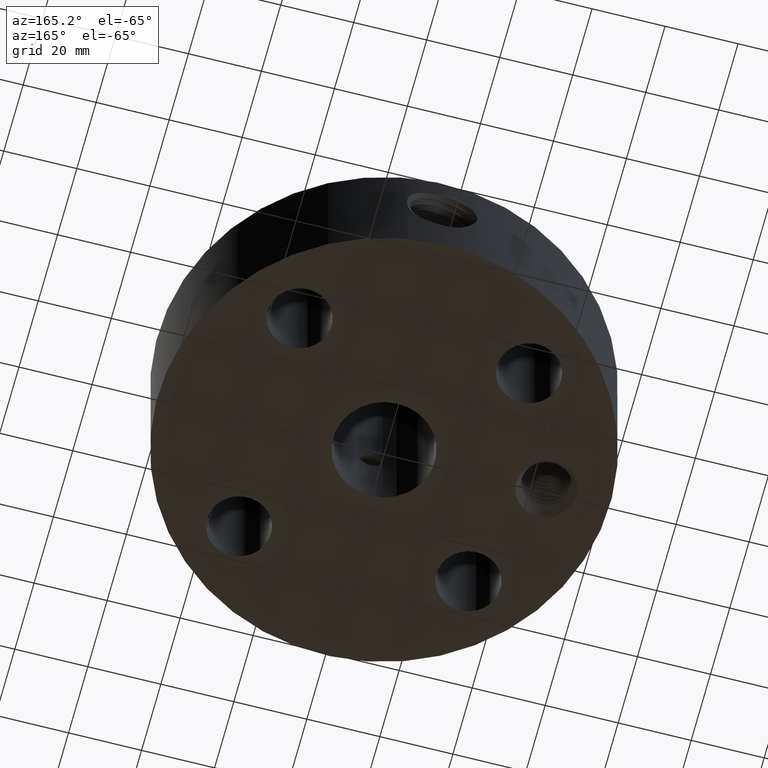
[diagram: clean part render]
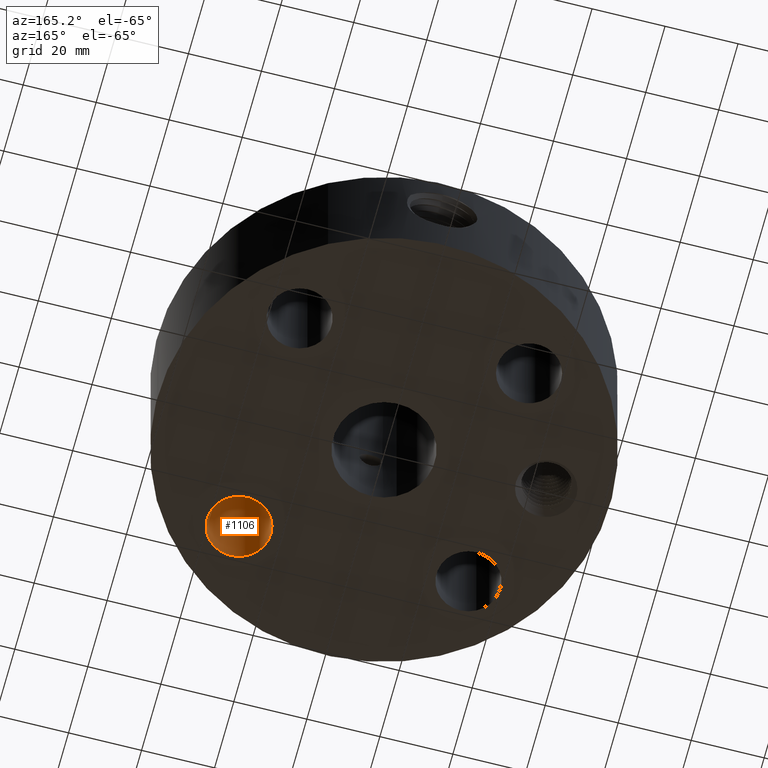
[diagram: same view with one face highlighted and labeled with its STEP entity id]
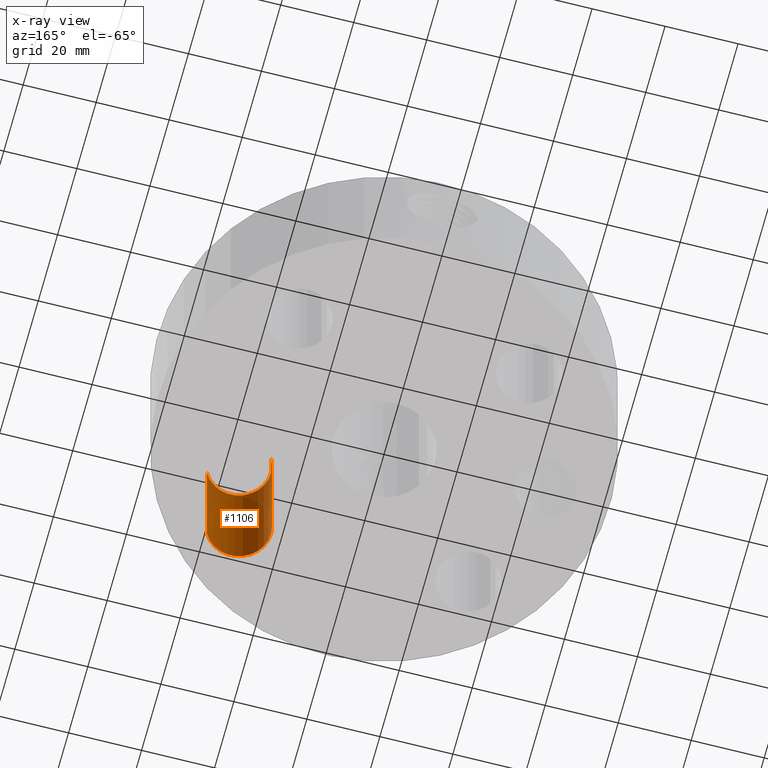
[diagram: x-ray of the same camera — body ghosted, the highlighted face saturated]
A machine part, auxiliary view. The second image highlights one B-rep face of the part: STEP entity #1106.
The next image is the same camera in x-ray: the body ghosted, the highlighted face saturated — about 20% of this face is hidden behind the body in this view.
In plain terms, the highlighted cylindrical surface (edge-blend (fillet) strip) has radius 8.763 mm, axis along (0, -0, -1).
Its self-contained STEP definition (entity closure, byte-faithful):
#227=AXIS2_PLACEMENT_3D('Circle Axis2P3D',#225,#226,$) ;
#484=AXIS2_PLACEMENT_3D('Circle Axis2P3D',#482,#483,$) ;
#1088=AXIS2_PLACEMENT_3D('Cylinder Axis2P3D',#1085,#1086,#1087) ;
#225=CARTESIAN_POINT('Axis2P3D Location',(1.23743686708,-1.23743686708,0.0600000000002)) ;
#229=CARTESIAN_POINT('Vertex',(1.54020285093,-1.4028386779,0.0600000000002)) ;
#231=CARTESIAN_POINT('Vertex',(0.934670883228,-1.07203505626,0.0600000000002)) ;
#477=CARTESIAN_POINT('Vertex',(0.934670883228,-1.07203505626,1.56000000001)) ;
#479=CARTESIAN_POINT('Vertex',(1.54020285093,-1.4028386779,1.56000000001)) ;
#482=CARTESIAN_POINT('Axis2P3D Location',(1.23743686708,-1.23743686708,1.56000000001)) ;
#1085=CARTESIAN_POINT('Axis2P3D Location',(1.23743686708,-1.23743686708,1.55606299213)) ;
#1090=CARTESIAN_POINT('Line Origine',(1.54020285093,-1.4028386779,0.810000000003)) ;
#1095=CARTESIAN_POINT('Line Origine',(0.934670883228,-1.07203505626,0.810000000003)) ;
#226=DIRECTION('Axis2P3D Direction',(0.,0.,-0.0393700787402)) ;
#483=DIRECTION('Axis2P3D Direction',(0.,0.,-0.0393700787402)) ;
#1086=DIRECTION('Axis2P3D Direction',(0.,-0.,-0.0393700787402)) ;
#1087=DIRECTION('Axis2P3D XDirection',(-0.0345504945626,0.0188750212049,0.)) ;
#1091=DIRECTION('Vector Direction',(0.,0.,-0.0393700787402)) ;
#1096=DIRECTION('Vector Direction',(0.,0.,-0.0393700787402)) ;
#1092=VECTOR('Line Direction',#1091,0.0393700787402) ;
#1097=VECTOR('Line Direction',#1096,0.0393700787402) ;
#1101=ORIENTED_EDGE('',*,*,#1094,.F.) ;
#1102=ORIENTED_EDGE('',*,*,#233,.T.) ;
#1103=ORIENTED_EDGE('',*,*,#1099,.T.) ;
#1104=ORIENTED_EDGE('',*,*,#486,.F.) ;
#1106=ADVANCED_FACE('PartBody',(#1105),#1089,.F.) ;
#228=CIRCLE('generated circle',#227,0.345000000001) ;
#485=CIRCLE('generated circle',#484,0.345000000001) ;
#1089=CYLINDRICAL_SURFACE('generated cylinder',#1088,0.345000000001) ;
#233=EDGE_CURVE('',#230,#232,#228,.T.) ;
#486=EDGE_CURVE('',#480,#478,#485,.T.) ;
#1094=EDGE_CURVE('',#230,#480,#1093,.F.) ;
#1099=EDGE_CURVE('',#232,#478,#1098,.F.) ;
#1100=EDGE_LOOP('',(#1101,#1102,#1103,#1104)) ;
#1105=FACE_OUTER_BOUND('',#1100,.T.) ;
#1093=LINE('Line',#1090,#1092) ;
#1098=LINE('Line',#1095,#1097) ;
#230=VERTEX_POINT('',#229) ;
#232=VERTEX_POINT('',#231) ;
#478=VERTEX_POINT('',#477) ;
#480=VERTEX_POINT('',#479) ;